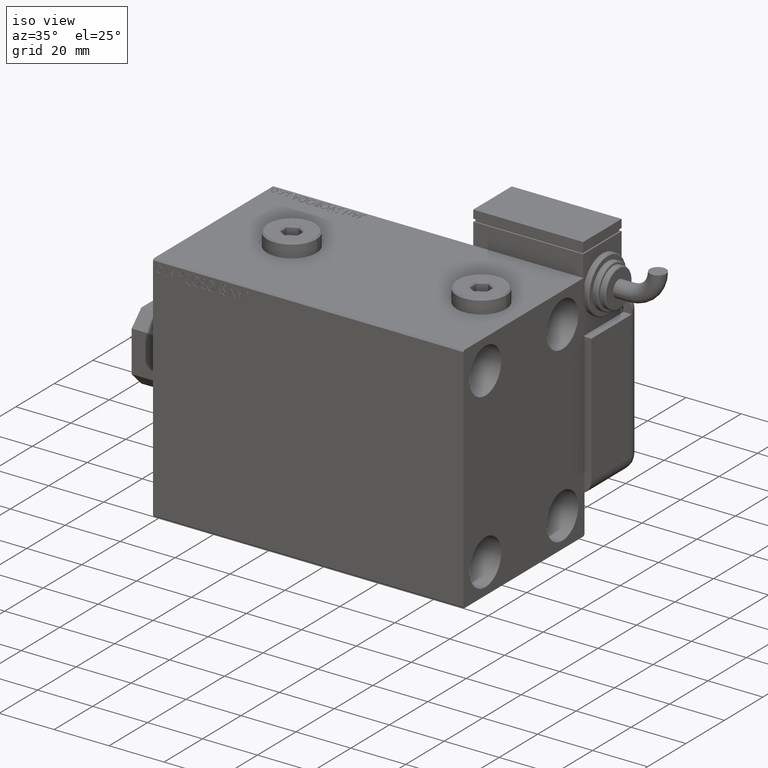
[diagram: clean part render]
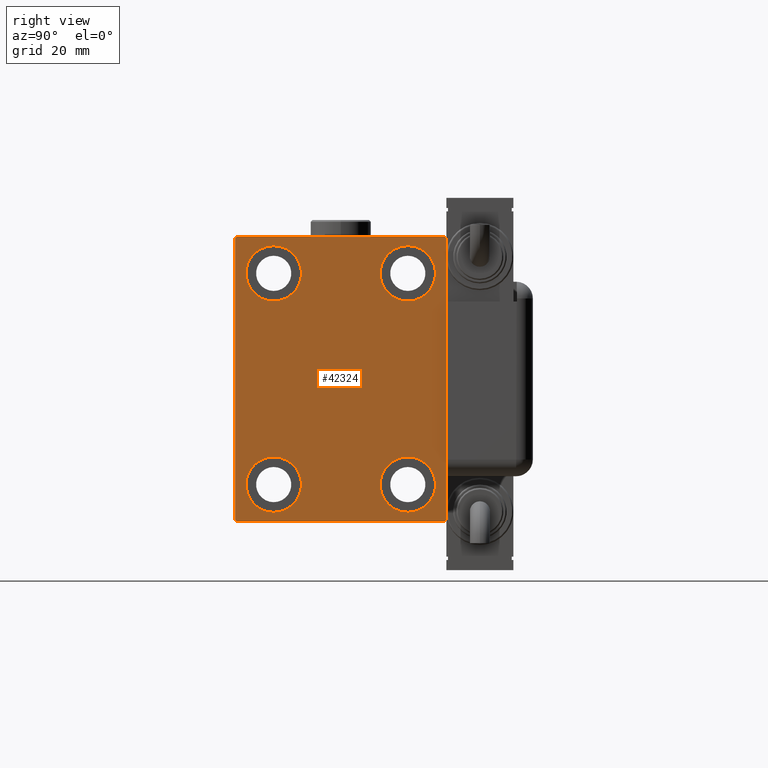
[diagram: tour spotlight — one face highlighted and labeled with its STEP entity id]
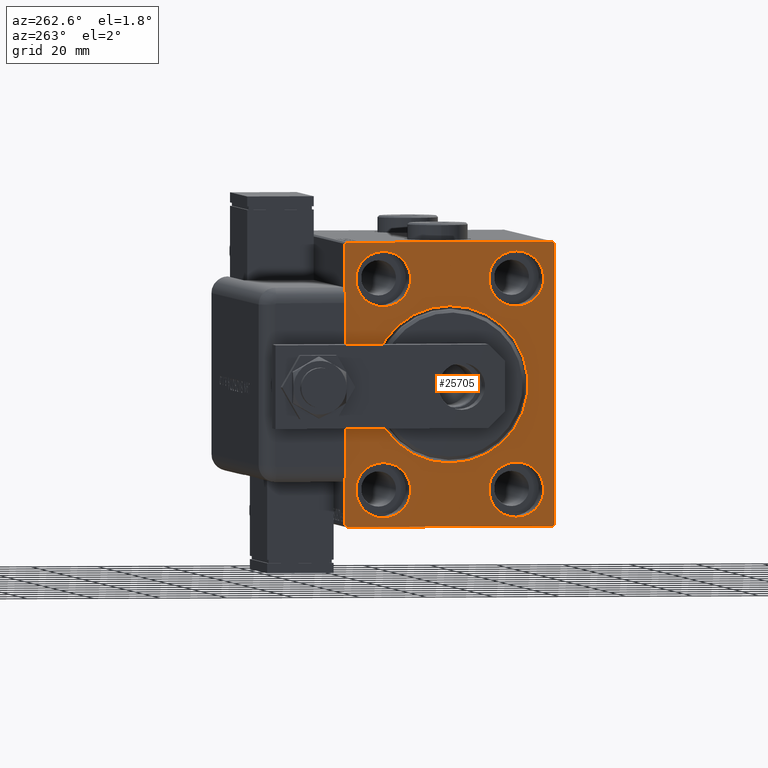
[diagram: tour spotlight — one face highlighted and labeled with its STEP entity id]
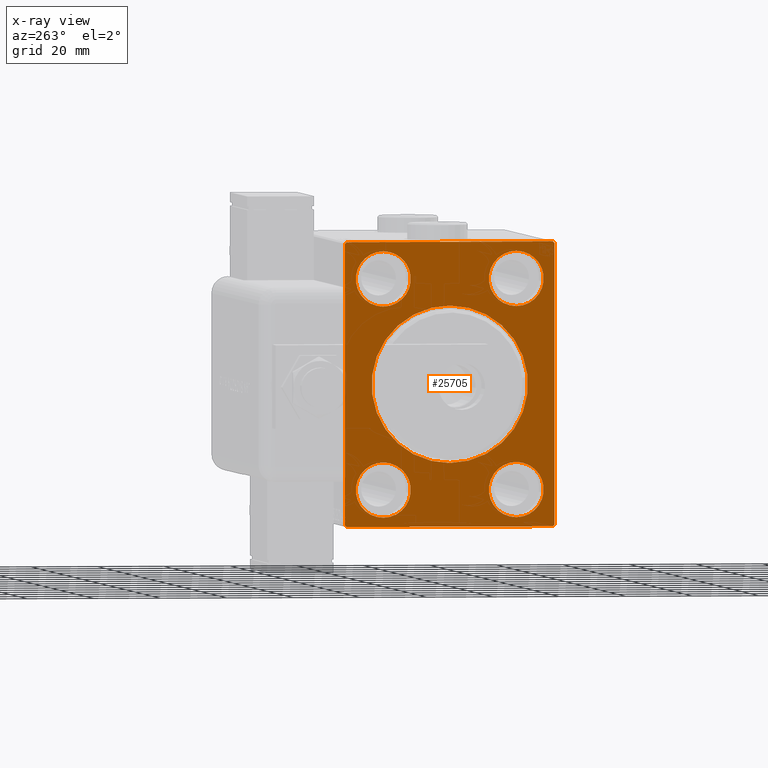
[diagram: x-ray of the same camera — body ghosted, this tour face saturated]
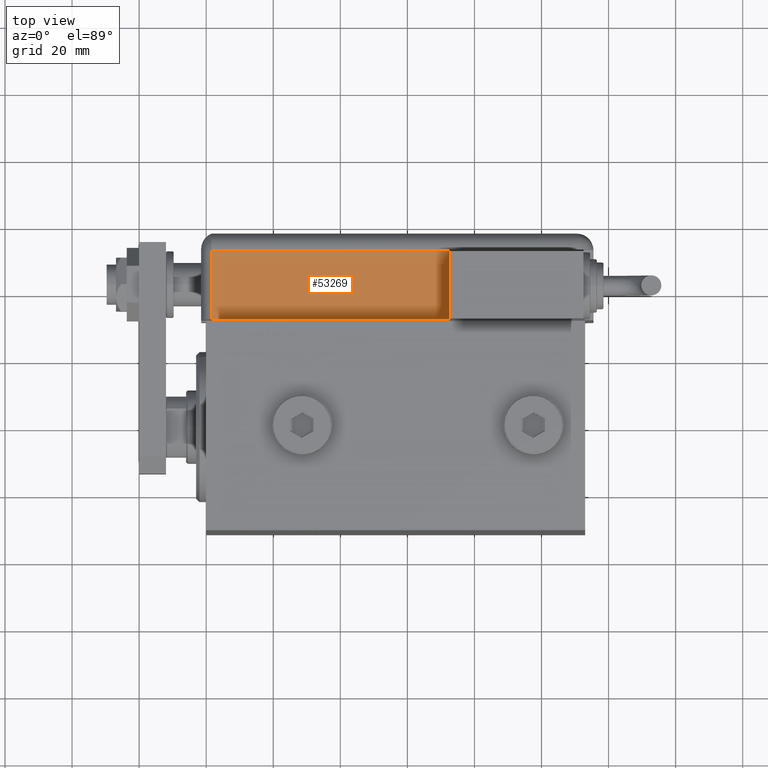
[diagram: tour spotlight — one face highlighted and labeled with its STEP entity id]
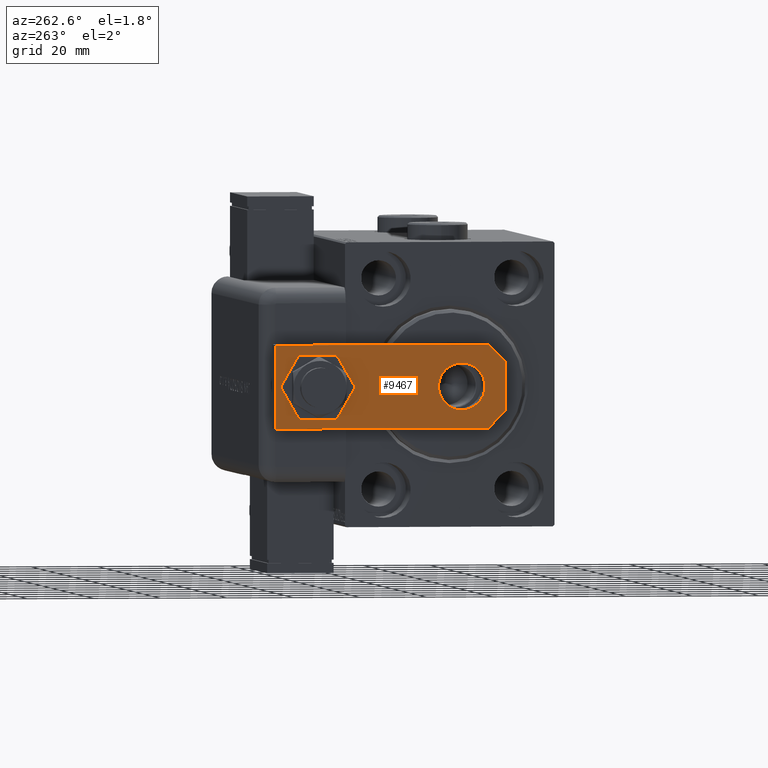
[diagram: tour spotlight — one face highlighted and labeled with its STEP entity id]
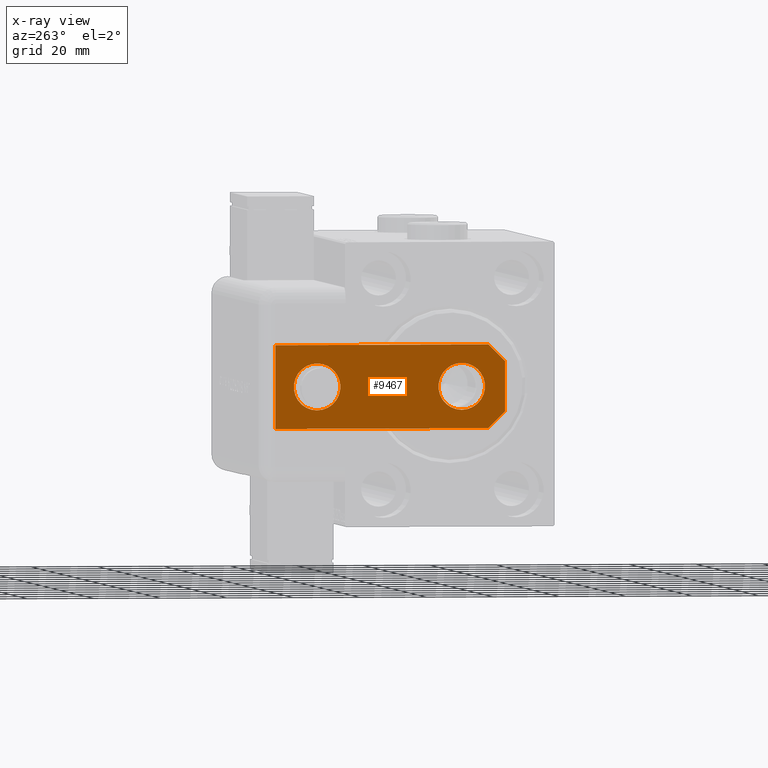
[diagram: x-ray of the same camera — body ghosted, this tour face saturated]
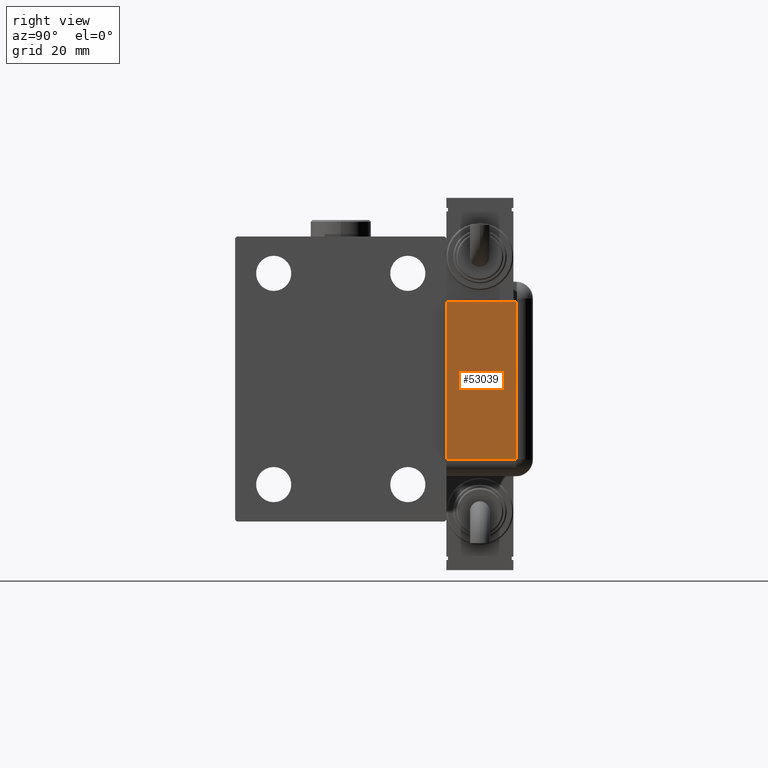
[diagram: tour spotlight — one face highlighted and labeled with its STEP entity id]
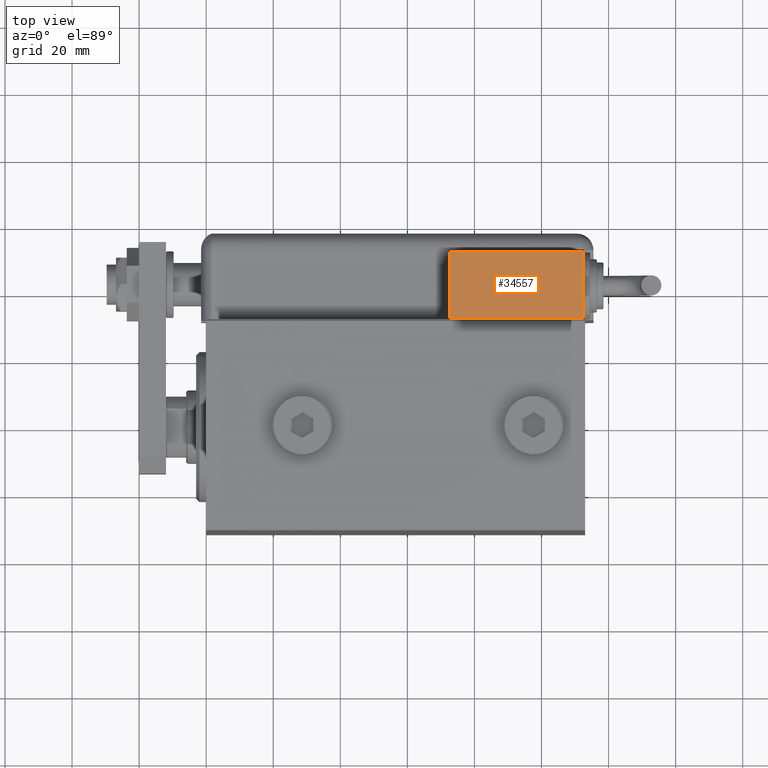
[diagram: tour spotlight — one face highlighted and labeled with its STEP entity id]
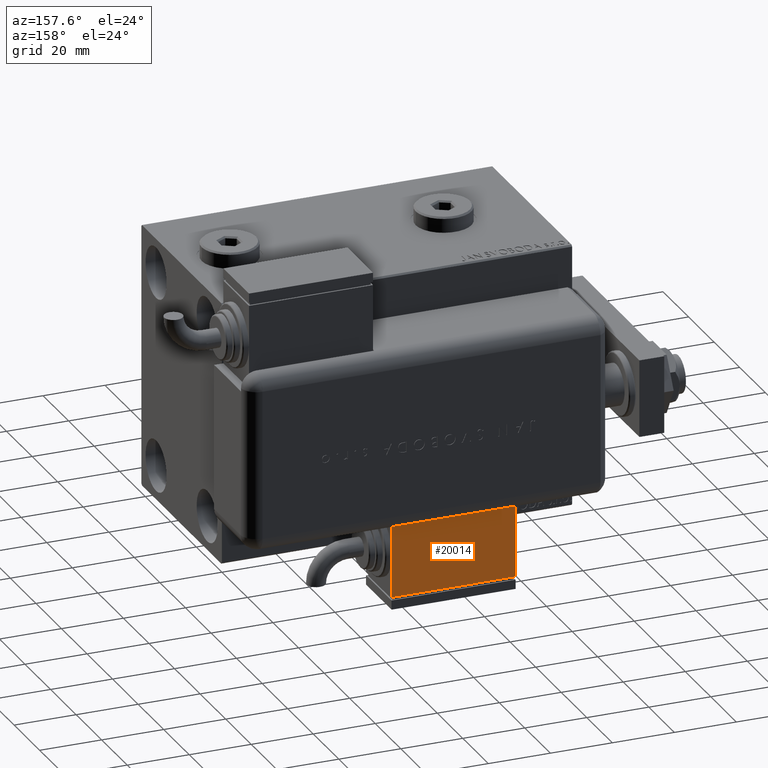
[diagram: tour spotlight — one face highlighted and labeled with its STEP entity id]
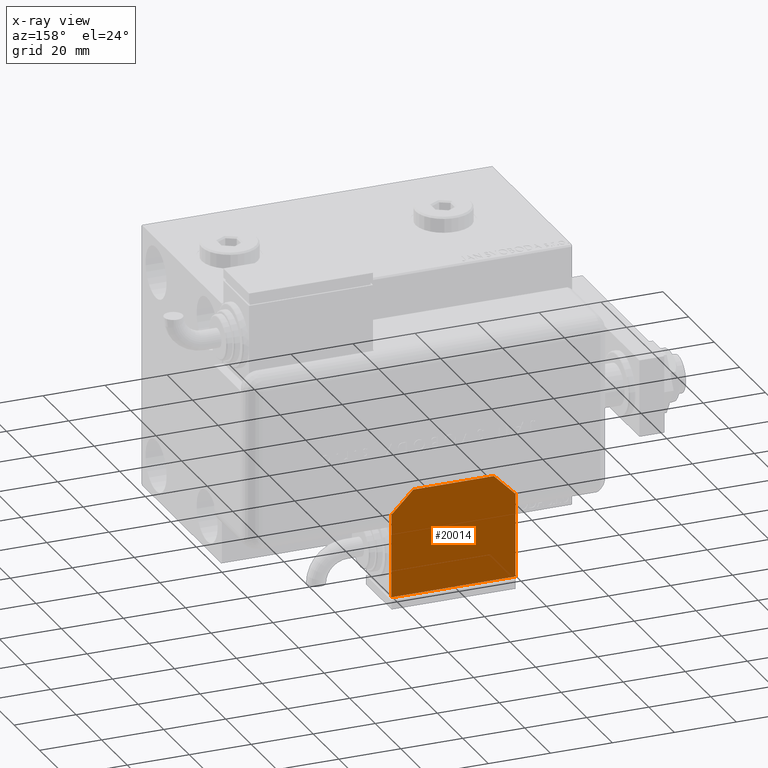
[diagram: x-ray of the same camera — body ghosted, this tour face saturated]
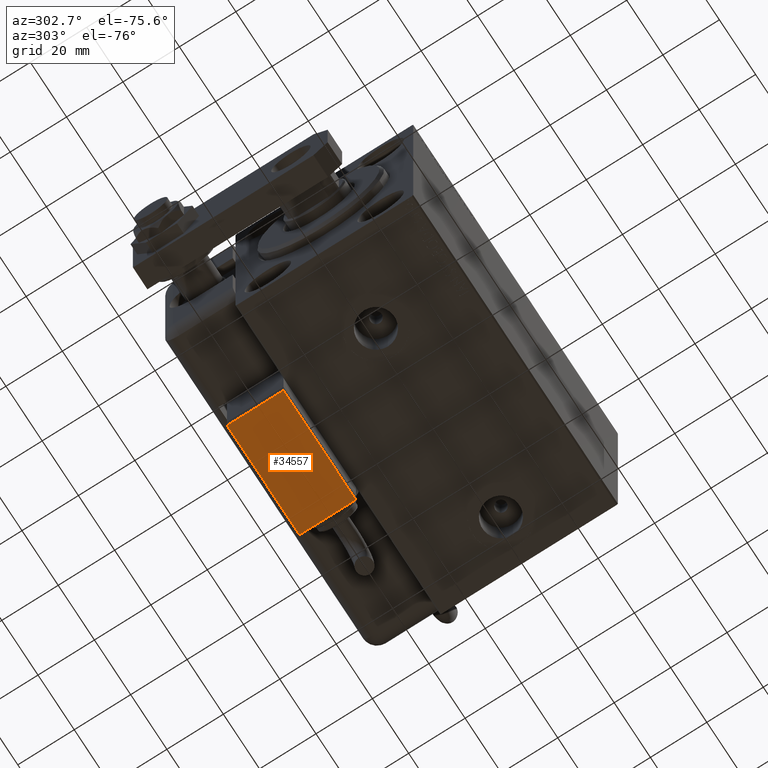
[diagram: tour spotlight — one face highlighted and labeled with its STEP entity id]
A machine part: a face-by-face anatomy tour. The part has 1300 B-rep faces; the first image is the clean iso view, then the 8 largest visible faces are spotlighted one at a time (largest first), each with its STEP entity span.

Face 1 — right view, entity #42324. In plain terms, the highlighted planar face has unit normal (1, 0, 0).
Definition (entity closure, byte-faithful):
#163 = VERTEX_POINT ( 'NONE', #48355 ) ;
#881 = FACE_BOUND ( 'NONE', #12547, .T. ) ;
#1147 = VECTOR ( 'NONE', #60481, 1000.000000000000114 ) ;
#1180 = CARTESIAN_POINT ( 'NONE',  ( 113.0000000000000000, 0.000000000000000000, 0.000000000000000000 ) ) ;
#1367 = CARTESIAN_POINT ( 'NONE',  ( 113.0000000000000000, -19.99999999999999645, 23.25000000000000355 ) ) ;
#1788 = CARTESIAN_POINT ( 'NONE',  ( 113.0000000000000000, -20.00000000000000355, -23.24999999999999289 ) ) ;
#1899 = EDGE_CURVE ( 'NONE', #26490, #8034, #24184, .T. ) ;
#3974 = AXIS2_PLACEMENT_3D ( 'NONE', #1180, #52376, #56994 ) ;
#4212 = EDGE_CURVE ( 'NONE', #163, #51815, #57241, .T. ) ;
#4309 = ORIENTED_EDGE ( 'NONE', *, *, #25605, .T. ) ;
#4444 = EDGE_CURVE ( 'NONE', #8034, #27098, #8486, .T. ) ;
#4465 = EDGE_CURVE ( 'NONE', #28912, #44376, #28076, .T. ) ;
#4735 = CARTESIAN_POINT ( 'NONE',  ( 113.0000000000000000, -19.99999999999999645, 31.50000000000000000 ) ) ;
#5036 = DIRECTION ( 'NONE',  ( -1.000000000000000000, -0.000000000000000000, -0.000000000000000000 ) ) ;
#5456 = VECTOR ( 'NONE', #24861, 1000.000000000000000 ) ;
#5556 = VERTEX_POINT ( 'NONE', #1367 ) ;
#6063 = CARTESIAN_POINT ( 'NONE',  ( 113.0000000000000000, 31.00000000000000000, -42.50000000000000711 ) ) ;
#6183 = CARTESIAN_POINT ( 'NONE',  ( 113.0000000000000000, -30.99999999999998579, 42.49999999999999289 ) ) ;
#6457 = VERTEX_POINT ( 'NONE', #40539 ) ;
#7351 = VECTOR ( 'NONE', #45401, 1000.000000000000114 ) ;
#7888 = EDGE_CURVE ( 'NONE', #6457, #14114, #49914, .T. ) ;
#8034 = VERTEX_POINT ( 'NONE', #44969 ) ;
#8486 = LINE ( 'NONE', #23286, #49782 ) ;
#10426 = FACE_BOUND ( 'NONE', #40494, .T. ) ;
#10445 = DIRECTION ( 'NONE',  ( -1.000000000000000000, -0.000000000000000000, -0.000000000000000000 ) ) ;
#11092 = DIRECTION ( 'NONE',  ( -0.000000000000000000, 0.7071067811865474617, 0.7071067811865474617 ) ) ;
#11503 = CARTESIAN_POINT ( 'NONE',  ( 113.0000000000000000, -31.50000000000000000, -41.99999999999999289 ) ) ;
#12048 = DIRECTION ( 'NONE',  ( 0.000000000000000000, 0.000000000000000000, 1.000000000000000000 ) ) ;
#12198 = CARTESIAN_POINT ( 'NONE',  ( 113.0000000000000000, 20.00000000000000355, 39.74999999999999289 ) ) ;
#12515 = DIRECTION ( 'NONE',  ( 0.000000000000000000, 0.000000000000000000, 1.000000000000000000 ) ) ;
#12547 = EDGE_LOOP ( 'NONE', ( #4309, #59628 ) ) ;
#12784 = CARTESIAN_POINT ( 'NONE',  ( 113.0000000000000000, 19.99999999999999645, -23.24999999999999289 ) ) ;
#12896 = AXIS2_PLACEMENT_3D ( 'NONE', #61019, #51465, #37563 ) ;
#14114 = VERTEX_POINT ( 'NONE', #12198 ) ;
#14863 = AXIS2_PLACEMENT_3D ( 'NONE', #45759, #5036, #42325 ) ;
#15052 = CARTESIAN_POINT ( 'NONE',  ( 113.0000000000000000, 19.99999999999999645, -31.49999999999999289 ) ) ;
#15914 = ORIENTED_EDGE ( 'NONE', *, *, #55507, .T. ) ;
#15921 = AXIS2_PLACEMENT_3D ( 'NONE', #34481, #10445, #25240 ) ;
#16809 = CIRCLE ( 'NONE', #12896, 8.250000000000000000 ) ;
#17635 = ORIENTED_EDGE ( 'NONE', *, *, #48485, .T. ) ;
#18044 = VECTOR ( 'NONE', #52513, 1000.000000000000000 ) ;
#18278 = ORIENTED_EDGE ( 'NONE', *, *, #36856, .T. ) ;
#18355 = ORIENTED_EDGE ( 'NONE', *, *, #42375, .T. ) ;
#18869 = AXIS2_PLACEMENT_3D ( 'NONE', #4735, #23252, #50706 ) ;
#19080 = FACE_OUTER_BOUND ( 'NONE', #49612, .T. ) ;
#19097 = VECTOR ( 'NONE', #44964, 1000.000000000000000 ) ;
#19386 = DIRECTION ( 'NONE',  ( 0.000000000000000000, 0.000000000000000000, 1.000000000000000000 ) ) ;
#21517 = EDGE_CURVE ( 'NONE', #49899, #50761, #53341, .T. ) ;
#21847 = CIRCLE ( 'NONE', #15921, 8.250000000000000000 ) ;
#22866 = CARTESIAN_POINT ( 'NONE',  ( 113.0000000000000000, -36.74999999999999289, -36.74999999999999289 ) ) ;
#23146 = DIRECTION ( 'NONE',  ( 0.000000000000000000, 0.000000000000000000, 1.000000000000000000 ) ) ;
#23252 = DIRECTION ( 'NONE',  ( -1.000000000000000000, -0.000000000000000000, -0.000000000000000000 ) ) ;
#23286 = CARTESIAN_POINT ( 'NONE',  ( 113.0000000000000000, -31.50000000000000000, 42.49999999999999289 ) ) ;
#24016 = FACE_BOUND ( 'NONE', #24598, .T. ) ;
#24184 = LINE ( 'NONE', #30932, #7351 ) ;
#24598 = EDGE_LOOP ( 'NONE', ( #48237, #58566 ) ) ;
#24861 = DIRECTION ( 'NONE',  ( -0.000000000000000000, -0.7071067811865573427, 0.7071067811865378028 ) ) ;
#25051 = CARTESIAN_POINT ( 'NONE',  ( 113.0000000000000000, 31.50000000000001421, -42.50000000000000711 ) ) ;
#25240 = DIRECTION ( 'NONE',  ( 0.000000000000000000, 0.000000000000000000, 1.000000000000000000 ) ) ;
#25242 = EDGE_CURVE ( 'NONE', #5556, #44458, #52296, .T. ) ;
#25605 = EDGE_CURVE ( 'NONE', #44376, #28912, #16809, .T. ) ;
#25636 = ORIENTED_EDGE ( 'NONE', *, *, #4444, .T. ) ;
#26490 = VERTEX_POINT ( 'NONE', #6183 ) ;
#27098 = VERTEX_POINT ( 'NONE', #11503 ) ;
#27739 = EDGE_CURVE ( 'NONE', #51893, #55994, #21847, .T. ) ;
#28076 = CIRCLE ( 'NONE', #35949, 8.250000000000000000 ) ;
#28691 = DIRECTION ( 'NONE',  ( 0.000000000000000000, -1.000000000000000000, -2.202823461557850341E-16 ) ) ;
#28912 = VERTEX_POINT ( 'NONE', #1788 ) ;
#29374 = LINE ( 'NONE', #25051, #18044 ) ;
#30932 = CARTESIAN_POINT ( 'NONE',  ( 113.0000000000000000, -36.74999999999998579, 36.74999999999998579 ) ) ;
#33547 = FACE_BOUND ( 'NONE', #44044, .T. ) ;
#33852 = PLANE ( 'NONE',  #3974 ) ;
#34403 = CARTESIAN_POINT ( 'NONE',  ( 113.0000000000000000, 36.74999999999955946, 36.75000000000057554 ) ) ;
#34481 = CARTESIAN_POINT ( 'NONE',  ( 113.0000000000000000, 19.99999999999999645, -31.49999999999999289 ) ) ;
#34760 = LINE ( 'NONE', #51831, #43685 ) ;
#35291 = EDGE_CURVE ( 'NONE', #50761, #163, #29374, .T. ) ;
#35405 = CARTESIAN_POINT ( 'NONE',  ( 113.0000000000000000, -31.50000000000000000, -42.50000000000000711 ) ) ;
#35949 = AXIS2_PLACEMENT_3D ( 'NONE', #37439, #40847, #12515 ) ;
#36856 = EDGE_CURVE ( 'NONE', #52132, #49899, #60379, .T. ) ;
#37439 = CARTESIAN_POINT ( 'NONE',  ( 113.0000000000000000, -20.00000000000000355, -31.49999999999999289 ) ) ;
#37563 = DIRECTION ( 'NONE',  ( 0.000000000000000000, 0.000000000000000000, 1.000000000000000000 ) ) ;
#38784 = DIRECTION ( 'NONE',  ( -1.000000000000000000, -0.000000000000000000, -0.000000000000000000 ) ) ;
#38926 = ORIENTED_EDGE ( 'NONE', *, *, #7888, .T. ) ;
#40494 = EDGE_LOOP ( 'NONE', ( #43355, #18355 ) ) ;
#40539 = CARTESIAN_POINT ( 'NONE',  ( 113.0000000000000000, 20.00000000000000355, 23.25000000000000355 ) ) ;
#40847 = DIRECTION ( 'NONE',  ( -1.000000000000000000, -0.000000000000000000, -0.000000000000000000 ) ) ;
#41733 = CARTESIAN_POINT ( 'NONE',  ( 113.0000000000000000, 30.99999999999995737, 42.50000000000000711 ) ) ;
#42064 = DIRECTION ( 'NONE',  ( 0.000000000000000000, 0.000000000000000000, -1.000000000000000000 ) ) ;
#42324 = ADVANCED_FACE ( 'NONE', ( #10426, #24016, #33547, #881, #19080 ), #33852, .T. ) ;
#42325 = DIRECTION ( 'NONE',  ( 0.000000000000000000, 0.000000000000000000, 1.000000000000000000 ) ) ;
#42375 = EDGE_CURVE ( 'NONE', #55994, #51893, #60097, .T. ) ;
#43192 = CARTESIAN_POINT ( 'NONE',  ( 113.0000000000000000, -20.00000000000000355, -39.74999999999999289 ) ) ;
#43355 = ORIENTED_EDGE ( 'NONE', *, *, #27739, .T. ) ;
#43685 = VECTOR ( 'NONE', #28691, 1000.000000000000000 ) ;
#43922 = ORIENTED_EDGE ( 'NONE', *, *, #21517, .T. ) ;
#43950 = AXIS2_PLACEMENT_3D ( 'NONE', #46264, #60761, #23146 ) ;
#44044 = EDGE_LOOP ( 'NONE', ( #38926, #17635 ) ) ;
#44376 = VERTEX_POINT ( 'NONE', #43192 ) ;
#44458 = VERTEX_POINT ( 'NONE', #58610 ) ;
#44525 = CIRCLE ( 'NONE', #46527, 8.249999999999992895 ) ;
#44681 = CARTESIAN_POINT ( 'NONE',  ( 113.0000000000000000, 36.75000000000000000, -36.75000000000000000 ) ) ;
#44964 = DIRECTION ( 'NONE',  ( 0.000000000000000000, 1.000000000000000000, 0.000000000000000000 ) ) ;
#44969 = CARTESIAN_POINT ( 'NONE',  ( 113.0000000000000000, -31.50000000000000000, 41.99999999999997868 ) ) ;
#45401 = DIRECTION ( 'NONE',  ( 0.000000000000000000, -0.7071067811865474617, -0.7071067811865474617 ) ) ;
#45456 = CIRCLE ( 'NONE', #18869, 8.249999999999992895 ) ;
#45759 = CARTESIAN_POINT ( 'NONE',  ( 113.0000000000000000, -19.99999999999999645, 31.50000000000000000 ) ) ;
#46030 = EDGE_CURVE ( 'NONE', #27098, #52132, #46289, .T. ) ;
#46264 = CARTESIAN_POINT ( 'NONE',  ( 113.0000000000000000, 20.00000000000000355, 31.50000000000000000 ) ) ;
#46289 = LINE ( 'NONE', #22866, #1147 ) ;
#46369 = CARTESIAN_POINT ( 'NONE',  ( 113.0000000000000000, 31.50000000000001421, -41.99999999999999289 ) ) ;
#46527 = AXIS2_PLACEMENT_3D ( 'NONE', #54296, #58613, #12048 ) ;
#47496 = ORIENTED_EDGE ( 'NONE', *, *, #4212, .T. ) ;
#48237 = ORIENTED_EDGE ( 'NONE', *, *, #25242, .T. ) ;
#48355 = CARTESIAN_POINT ( 'NONE',  ( 113.0000000000000000, 31.50000000000000000, 41.99999999999997868 ) ) ;
#48485 = EDGE_CURVE ( 'NONE', #14114, #6457, #44525, .T. ) ;
#49458 = ORIENTED_EDGE ( 'NONE', *, *, #1899, .T. ) ;
#49612 = EDGE_LOOP ( 'NONE', ( #15914, #49458, #25636, #57011, #18278, #43922, #58042, #47496 ) ) ;
#49782 = VECTOR ( 'NONE', #42064, 1000.000000000000000 ) ;
#49899 = VERTEX_POINT ( 'NONE', #6063 ) ;
#49914 = CIRCLE ( 'NONE', #43950, 8.249999999999992895 ) ;
#50235 = AXIS2_PLACEMENT_3D ( 'NONE', #15052, #38784, #19386 ) ;
#50640 = CARTESIAN_POINT ( 'NONE',  ( 113.0000000000000000, -30.99999999999998579, -42.50000000000000711 ) ) ;
#50706 = DIRECTION ( 'NONE',  ( 0.000000000000000000, 0.000000000000000000, 1.000000000000000000 ) ) ;
#50722 = EDGE_CURVE ( 'NONE', #44458, #5556, #45456, .T. ) ;
#50761 = VERTEX_POINT ( 'NONE', #46369 ) ;
#51465 = DIRECTION ( 'NONE',  ( -1.000000000000000000, -0.000000000000000000, -0.000000000000000000 ) ) ;
#51815 = VERTEX_POINT ( 'NONE', #41733 ) ;
#51831 = CARTESIAN_POINT ( 'NONE',  ( 113.0000000000000000, 31.50000000000000000, 42.50000000000000711 ) ) ;
#51893 = VERTEX_POINT ( 'NONE', #55648 ) ;
#52132 = VERTEX_POINT ( 'NONE', #50640 ) ;
#52296 = CIRCLE ( 'NONE', #14863, 8.249999999999992895 ) ;
#52376 = DIRECTION ( 'NONE',  ( 1.000000000000000000, 0.000000000000000000, 0.000000000000000000 ) ) ;
#52513 = DIRECTION ( 'NONE',  ( 0.000000000000000000, -1.632680918566406300E-16, 1.000000000000000000 ) ) ;
#53341 = LINE ( 'NONE', #44681, #60968 ) ;
#54296 = CARTESIAN_POINT ( 'NONE',  ( 113.0000000000000000, 20.00000000000000355, 31.50000000000000000 ) ) ;
#55507 = EDGE_CURVE ( 'NONE', #51815, #26490, #34760, .T. ) ;
#55648 = CARTESIAN_POINT ( 'NONE',  ( 113.0000000000000000, 19.99999999999999645, -39.74999999999999289 ) ) ;
#55994 = VERTEX_POINT ( 'NONE', #12784 ) ;
#56994 = DIRECTION ( 'NONE',  ( 0.000000000000000000, 0.000000000000000000, -1.000000000000000000 ) ) ;
#57011 = ORIENTED_EDGE ( 'NONE', *, *, #46030, .T. ) ;
#57241 = LINE ( 'NONE', #34403, #5456 ) ;
#58042 = ORIENTED_EDGE ( 'NONE', *, *, #35291, .T. ) ;
#58566 = ORIENTED_EDGE ( 'NONE', *, *, #50722, .T. ) ;
#58610 = CARTESIAN_POINT ( 'NONE',  ( 113.0000000000000000, -19.99999999999999645, 39.74999999999999289 ) ) ;
#58613 = DIRECTION ( 'NONE',  ( -1.000000000000000000, -0.000000000000000000, -0.000000000000000000 ) ) ;
#59628 = ORIENTED_EDGE ( 'NONE', *, *, #4465, .T. ) ;
#60097 = CIRCLE ( 'NONE', #50235, 8.250000000000000000 ) ;
#60379 = LINE ( 'NONE', #35405, #19097 ) ;
#60481 = DIRECTION ( 'NONE',  ( -0.000000000000000000, 0.7071067811865474617, -0.7071067811865474617 ) ) ;
#60761 = DIRECTION ( 'NONE',  ( -1.000000000000000000, -0.000000000000000000, -0.000000000000000000 ) ) ;
#60968 = VECTOR ( 'NONE', #11092, 1000.000000000000114 ) ;
#61019 = CARTESIAN_POINT ( 'NONE',  ( 113.0000000000000000, -20.00000000000000355, -31.49999999999999289 ) ) ;

Face 2 — auxiliary view, entity #25705. An x-ray twin of the same camera follows (body ghosted, this face saturated) — the face is partly hidden behind the body. In plain terms, the highlighted planar face has unit normal (1, 0, 0).
Definition (entity closure, byte-faithful):
#52 = ORIENTED_EDGE ( 'NONE', *, *, #32959, .F. ) ;
#510 = CARTESIAN_POINT ( 'NONE',  ( 0.000000000000000000, -30.99999999999998579, -42.50000000000000711 ) ) ;
#593 = VERTEX_POINT ( 'NONE', #510 ) ;
#1220 = VERTEX_POINT ( 'NONE', #16888 ) ;
#1227 = AXIS2_PLACEMENT_3D ( 'NONE', #35809, #49703, #45976 ) ;
#1296 = CARTESIAN_POINT ( 'NONE',  ( 0.000000000000000000, -19.99999999999999645, 23.25000000000000355 ) ) ;
#1665 = CARTESIAN_POINT ( 'NONE',  ( 0.000000000000000000, -30.99999999999998579, 42.49999999999999289 ) ) ;
#1781 = DIRECTION ( 'NONE',  ( 1.000000000000000000, 0.000000000000000000, 0.000000000000000000 ) ) ;
#1794 = ORIENTED_EDGE ( 'NONE', *, *, #60011, .F. ) ;
#2746 = AXIS2_PLACEMENT_3D ( 'NONE', #59309, #50361, #8116 ) ;
#2916 = DIRECTION ( 'NONE',  ( -0.000000000000000000, 0.7071067811865573427, -0.7071067811865378028 ) ) ;
#3011 = FACE_BOUND ( 'NONE', #42084, .T. ) ;
#3065 = ORIENTED_EDGE ( 'NONE', *, *, #39185, .T. ) ;
#3777 = LINE ( 'NONE', #54970, #11758 ) ;
#3907 = EDGE_LOOP ( 'NONE', ( #17322, #35334 ) ) ;
#4224 = FACE_BOUND ( 'NONE', #3907, .T. ) ;
#4845 = AXIS2_PLACEMENT_3D ( 'NONE', #56971, #11315, #39666 ) ;
#4976 = DIRECTION ( 'NONE',  ( -0.000000000000000000, 0.7071067811865474617, 0.7071067811865474617 ) ) ;
#5054 = DIRECTION ( 'NONE',  ( 0.000000000000000000, 0.000000000000000000, 1.000000000000000000 ) ) ;
#5130 = VERTEX_POINT ( 'NONE', #36614 ) ;
#5816 = CIRCLE ( 'NONE', #53092, 8.249999999999992895 ) ;
#6017 = CARTESIAN_POINT ( 'NONE',  ( 0.000000000000000000, 19.99999999999999645, -39.74999999999999289 ) ) ;
#6589 = CARTESIAN_POINT ( 'NONE',  ( 0.000000000000000000, -31.50000000000000000, 42.49999999999999289 ) ) ;
#6852 = VERTEX_POINT ( 'NONE', #51563 ) ;
#6951 = CIRCLE ( 'NONE', #30593, 8.250000000000000000 ) ;
#7124 = VECTOR ( 'NONE', #23260, 1000.000000000000000 ) ;
#7182 = CARTESIAN_POINT ( 'NONE',  ( 0.000000000000000000, 31.00000000000000000, -42.50000000000000711 ) ) ;
#7455 = VERTEX_POINT ( 'NONE', #1665 ) ;
#8116 = DIRECTION ( 'NONE',  ( 0.000000000000000000, 0.000000000000000000, 1.000000000000000000 ) ) ;
#8834 = FACE_BOUND ( 'NONE', #13019, .T. ) ;
#9655 = CARTESIAN_POINT ( 'NONE',  ( 0.000000000000000000, 31.50000000000001421, -41.99999999999999289 ) ) ;
#10551 = ORIENTED_EDGE ( 'NONE', *, *, #19643, .F. ) ;
#10579 = DIRECTION ( 'NONE',  ( -1.000000000000000000, 0.000000000000000000, 0.000000000000000000 ) ) ;
#11315 = DIRECTION ( 'NONE',  ( -1.000000000000000000, 0.000000000000000000, 0.000000000000000000 ) ) ;
#11693 = LINE ( 'NONE', #58870, #31396 ) ;
#11758 = VECTOR ( 'NONE', #59898, 1000.000000000000114 ) ;
#12468 = LINE ( 'NONE', #36189, #57213 ) ;
#13019 = EDGE_LOOP ( 'NONE', ( #29588, #55382 ) ) ;
#13479 = CARTESIAN_POINT ( 'NONE',  ( 0.000000000000000000, 0.000000000000000000, 0.000000000000000000 ) ) ;
#13576 = EDGE_CURVE ( 'NONE', #59311, #51770, #36227, .T. ) ;
#13830 = AXIS2_PLACEMENT_3D ( 'NONE', #48649, #1781, #39379 ) ;
#14076 = DIRECTION ( 'NONE',  ( 0.000000000000000000, 0.000000000000000000, 1.000000000000000000 ) ) ;
#14657 = EDGE_CURVE ( 'NONE', #42910, #58168, #52973, .T. ) ;
#14991 = CIRCLE ( 'NONE', #1227, 8.250000000000000000 ) ;
#15255 = VERTEX_POINT ( 'NONE', #20269 ) ;
#15467 = ORIENTED_EDGE ( 'NONE', *, *, #43385, .T. ) ;
#15548 = CARTESIAN_POINT ( 'NONE',  ( 0.000000000000000000, -19.99999999999999645, 31.50000000000000000 ) ) ;
#16368 = DIRECTION ( 'NONE',  ( 1.000000000000000000, 0.000000000000000000, 0.000000000000000000 ) ) ;
#16888 = CARTESIAN_POINT ( 'NONE',  ( 0.000000000000000000, 0.000000000000000000, 23.50000000000003197 ) ) ;
#17043 = DIRECTION ( 'NONE',  ( 0.000000000000000000, 0.000000000000000000, 1.000000000000000000 ) ) ;
#17322 = ORIENTED_EDGE ( 'NONE', *, *, #54206, .F. ) ;
#17385 = ORIENTED_EDGE ( 'NONE', *, *, #14657, .F. ) ;
#17747 = VECTOR ( 'NONE', #4976, 1000.000000000000114 ) ;
#18407 = CARTESIAN_POINT ( 'NONE',  ( 0.000000000000000000, -20.00000000000000355, -31.49999999999999289 ) ) ;
#19011 = AXIS2_PLACEMENT_3D ( 'NONE', #15548, #53785, #43905 ) ;
#19643 = EDGE_CURVE ( 'NONE', #6852, #45701, #35243, .T. ) ;
#19896 = VERTEX_POINT ( 'NONE', #46792 ) ;
#20247 = AXIS2_PLACEMENT_3D ( 'NONE', #18407, #36582, #14076 ) ;
#20269 = CARTESIAN_POINT ( 'NONE',  ( 0.000000000000000000, -20.00000000000000355, -39.74999999999999289 ) ) ;
#20558 = EDGE_CURVE ( 'NONE', #25324, #5130, #11693, .T. ) ;
#20773 = EDGE_CURVE ( 'NONE', #24511, #47271, #32397, .T. ) ;
#20998 = VERTEX_POINT ( 'NONE', #41477 ) ;
#21024 = ORIENTED_EDGE ( 'NONE', *, *, #40346, .T. ) ;
#21081 = DIRECTION ( 'NONE',  ( 0.000000000000000000, 0.000000000000000000, -1.000000000000000000 ) ) ;
#21260 = DIRECTION ( 'NONE',  ( 0.000000000000000000, -1.632680918566406300E-16, 1.000000000000000000 ) ) ;
#21524 = VERTEX_POINT ( 'NONE', #30213 ) ;
#22345 = CARTESIAN_POINT ( 'NONE',  ( 0.000000000000000000, 20.00000000000000355, 39.74999999999999289 ) ) ;
#22899 = CIRCLE ( 'NONE', #45508, 23.50000000000003197 ) ;
#23038 = PLANE ( 'NONE',  #43383 ) ;
#23260 = DIRECTION ( 'NONE',  ( 0.000000000000000000, 1.000000000000000000, 0.000000000000000000 ) ) ;
#23566 = CARTESIAN_POINT ( 'NONE',  ( 0.000000000000000000, 20.00000000000000355, 31.50000000000000000 ) ) ;
#23953 = CIRCLE ( 'NONE', #19011, 8.249999999999992895 ) ;
#24511 = VERTEX_POINT ( 'NONE', #1296 ) ;
#24557 = CARTESIAN_POINT ( 'NONE',  ( 0.000000000000000000, 31.50000000000000000, 42.50000000000000711 ) ) ;
#24932 = EDGE_CURVE ( 'NONE', #19896, #7455, #54363, .T. ) ;
#25012 = CARTESIAN_POINT ( 'NONE',  ( 0.000000000000000000, 0.000000000000000000, 0.000000000000000000 ) ) ;
#25324 = VERTEX_POINT ( 'NONE', #54267 ) ;
#25705 = ADVANCED_FACE ( 'NONE', ( #60346, #8834, #4224, #27054, #3011, #27654 ), #23038, .F. ) ;
#25802 = EDGE_LOOP ( 'NONE', ( #10551, #15467, #37005, #27533, #54946, #3065, #32101, #21024 ) ) ;
#26383 = AXIS2_PLACEMENT_3D ( 'NONE', #38632, #45320, #40684 ) ;
#27054 = FACE_BOUND ( 'NONE', #29208, .T. ) ;
#27266 = CARTESIAN_POINT ( 'NONE',  ( 0.000000000000000000, -31.50000000000000000, -41.99999999999999289 ) ) ;
#27281 = LINE ( 'NONE', #56239, #7124 ) ;
#27533 = ORIENTED_EDGE ( 'NONE', *, *, #45642, .T. ) ;
#27654 = FACE_OUTER_BOUND ( 'NONE', #25802, .T. ) ;
#28401 = CARTESIAN_POINT ( 'NONE',  ( 0.000000000000000000, -31.50000000000000000, 41.99999999999997868 ) ) ;
#29208 = EDGE_LOOP ( 'NONE', ( #57128, #17385 ) ) ;
#29412 = EDGE_CURVE ( 'NONE', #593, #30547, #27281, .T. ) ;
#29588 = ORIENTED_EDGE ( 'NONE', *, *, #44091, .F. ) ;
#30213 = CARTESIAN_POINT ( 'NONE',  ( 0.000000000000000000, -20.00000000000000355, -23.24999999999999289 ) ) ;
#30378 = CARTESIAN_POINT ( 'NONE',  ( 0.000000000000000000, 19.99999999999999645, -23.24999999999999289 ) ) ;
#30547 = VERTEX_POINT ( 'NONE', #7182 ) ;
#30593 = AXIS2_PLACEMENT_3D ( 'NONE', #60205, #46011, #17043 ) ;
#31396 = VECTOR ( 'NONE', #21260, 1000.000000000000000 ) ;
#32101 = ORIENTED_EDGE ( 'NONE', *, *, #29412, .F. ) ;
#32278 = DIRECTION ( 'NONE',  ( 0.000000000000000000, 0.000000000000000000, -1.000000000000000000 ) ) ;
#32397 = CIRCLE ( 'NONE', #4845, 8.249999999999992895 ) ;
#32959 = EDGE_CURVE ( 'NONE', #21524, #15255, #14991, .T. ) ;
#34119 = EDGE_LOOP ( 'NONE', ( #58962, #46717 ) ) ;
#35243 = LINE ( 'NONE', #6589, #45153 ) ;
#35334 = ORIENTED_EDGE ( 'NONE', *, *, #20773, .F. ) ;
#35809 = CARTESIAN_POINT ( 'NONE',  ( 0.000000000000000000, -20.00000000000000355, -31.49999999999999289 ) ) ;
#36189 = CARTESIAN_POINT ( 'NONE',  ( 0.000000000000000000, 30.99999999999995737, 42.50000000000000711 ) ) ;
#36227 = CIRCLE ( 'NONE', #26383, 8.250000000000000000 ) ;
#36582 = DIRECTION ( 'NONE',  ( -1.000000000000000000, 0.000000000000000000, 0.000000000000000000 ) ) ;
#36614 = CARTESIAN_POINT ( 'NONE',  ( 0.000000000000000000, 31.50000000000000000, 41.99999999999997868 ) ) ;
#37005 = ORIENTED_EDGE ( 'NONE', *, *, #24932, .F. ) ;
#38632 = CARTESIAN_POINT ( 'NONE',  ( 0.000000000000000000, 19.99999999999999645, -31.49999999999999289 ) ) ;
#39185 = EDGE_CURVE ( 'NONE', #25324, #30547, #52223, .T. ) ;
#39379 = DIRECTION ( 'NONE',  ( 0.000000000000000000, 0.000000000000000000, -1.000000000000000000 ) ) ;
#39666 = DIRECTION ( 'NONE',  ( 0.000000000000000000, 0.000000000000000000, 1.000000000000000000 ) ) ;
#40161 = EDGE_CURVE ( 'NONE', #58168, #42910, #5816, .T. ) ;
#40346 = EDGE_CURVE ( 'NONE', #593, #45701, #3777, .T. ) ;
#40684 = DIRECTION ( 'NONE',  ( 0.000000000000000000, 0.000000000000000000, 1.000000000000000000 ) ) ;
#41204 = DIRECTION ( 'NONE',  ( 1.000000000000000000, 0.000000000000000000, 0.000000000000000000 ) ) ;
#41477 = CARTESIAN_POINT ( 'NONE',  ( 0.000000000000000000, 2.877919977996283870E-15, -23.50000000000003197 ) ) ;
#42084 = EDGE_LOOP ( 'NONE', ( #52, #1794 ) ) ;
#42900 = VECTOR ( 'NONE', #51615, 1000.000000000000114 ) ;
#42910 = VERTEX_POINT ( 'NONE', #49804 ) ;
#43041 = DIRECTION ( 'NONE',  ( 0.000000000000000000, -1.000000000000000000, -2.202823461557850341E-16 ) ) ;
#43383 = AXIS2_PLACEMENT_3D ( 'NONE', #13479, #41204, #32278 ) ;
#43385 = EDGE_CURVE ( 'NONE', #6852, #7455, #51847, .T. ) ;
#43905 = DIRECTION ( 'NONE',  ( 0.000000000000000000, 0.000000000000000000, 1.000000000000000000 ) ) ;
#44091 = EDGE_CURVE ( 'NONE', #51770, #59311, #6951, .T. ) ;
#44616 = EDGE_CURVE ( 'NONE', #20998, #1220, #59160, .T. ) ;
#44723 = DIRECTION ( 'NONE',  ( 0.000000000000000000, 0.000000000000000000, -1.000000000000000000 ) ) ;
#45153 = VECTOR ( 'NONE', #21081, 1000.000000000000000 ) ;
#45320 = DIRECTION ( 'NONE',  ( -1.000000000000000000, 0.000000000000000000, 0.000000000000000000 ) ) ;
#45508 = AXIS2_PLACEMENT_3D ( 'NONE', #25012, #16368, #44723 ) ;
#45642 = EDGE_CURVE ( 'NONE', #19896, #5130, #12468, .T. ) ;
#45701 = VERTEX_POINT ( 'NONE', #27266 ) ;
#45976 = DIRECTION ( 'NONE',  ( 0.000000000000000000, 0.000000000000000000, 1.000000000000000000 ) ) ;
#46011 = DIRECTION ( 'NONE',  ( -1.000000000000000000, 0.000000000000000000, 0.000000000000000000 ) ) ;
#46717 = ORIENTED_EDGE ( 'NONE', *, *, #44616, .T. ) ;
#46792 = CARTESIAN_POINT ( 'NONE',  ( 0.000000000000000000, 30.99999999999995737, 42.50000000000000711 ) ) ;
#47271 = VERTEX_POINT ( 'NONE', #48242 ) ;
#48242 = CARTESIAN_POINT ( 'NONE',  ( 0.000000000000000000, -19.99999999999999645, 39.74999999999999289 ) ) ;
#48497 = EDGE_CURVE ( 'NONE', #1220, #20998, #22899, .T. ) ;
#48649 = CARTESIAN_POINT ( 'NONE',  ( 0.000000000000000000, 0.000000000000000000, 0.000000000000000000 ) ) ;
#49703 = DIRECTION ( 'NONE',  ( -1.000000000000000000, 0.000000000000000000, 0.000000000000000000 ) ) ;
#49804 = CARTESIAN_POINT ( 'NONE',  ( 0.000000000000000000, 20.00000000000000355, 23.25000000000000355 ) ) ;
#50361 = DIRECTION ( 'NONE',  ( -1.000000000000000000, 0.000000000000000000, 0.000000000000000000 ) ) ;
#51563 = CARTESIAN_POINT ( 'NONE',  ( 0.000000000000000000, -31.50000000000000000, 41.99999999999997868 ) ) ;
#51615 = DIRECTION ( 'NONE',  ( 0.000000000000000000, -0.7071067811865474617, -0.7071067811865474617 ) ) ;
#51770 = VERTEX_POINT ( 'NONE', #30378 ) ;
#51847 = LINE ( 'NONE', #28401, #17747 ) ;
#52223 = LINE ( 'NONE', #9655, #42900 ) ;
#52253 = VECTOR ( 'NONE', #43041, 1000.000000000000000 ) ;
#52973 = CIRCLE ( 'NONE', #2746, 8.249999999999992895 ) ;
#53092 = AXIS2_PLACEMENT_3D ( 'NONE', #23566, #10579, #5054 ) ;
#53785 = DIRECTION ( 'NONE',  ( -1.000000000000000000, 0.000000000000000000, 0.000000000000000000 ) ) ;
#54206 = EDGE_CURVE ( 'NONE', #47271, #24511, #23953, .T. ) ;
#54267 = CARTESIAN_POINT ( 'NONE',  ( 0.000000000000000000, 31.50000000000001421, -41.99999999999999289 ) ) ;
#54363 = LINE ( 'NONE', #24557, #52253 ) ;
#54946 = ORIENTED_EDGE ( 'NONE', *, *, #20558, .F. ) ;
#54970 = CARTESIAN_POINT ( 'NONE',  ( 0.000000000000000000, -30.99999999999998579, -42.50000000000000711 ) ) ;
#55382 = ORIENTED_EDGE ( 'NONE', *, *, #13576, .F. ) ;
#56239 = CARTESIAN_POINT ( 'NONE',  ( 0.000000000000000000, -31.50000000000000000, -42.50000000000000711 ) ) ;
#56971 = CARTESIAN_POINT ( 'NONE',  ( 0.000000000000000000, -19.99999999999999645, 31.50000000000000000 ) ) ;
#57128 = ORIENTED_EDGE ( 'NONE', *, *, #40161, .F. ) ;
#57213 = VECTOR ( 'NONE', #2916, 1000.000000000000000 ) ;
#57645 = CIRCLE ( 'NONE', #20247, 8.250000000000000000 ) ;
#58168 = VERTEX_POINT ( 'NONE', #22345 ) ;
#58870 = CARTESIAN_POINT ( 'NONE',  ( 0.000000000000000000, 31.50000000000001421, -42.50000000000000711 ) ) ;
#58962 = ORIENTED_EDGE ( 'NONE', *, *, #48497, .T. ) ;
#59160 = CIRCLE ( 'NONE', #13830, 23.50000000000003197 ) ;
#59309 = CARTESIAN_POINT ( 'NONE',  ( 0.000000000000000000, 20.00000000000000355, 31.50000000000000000 ) ) ;
#59311 = VERTEX_POINT ( 'NONE', #6017 ) ;
#59898 = DIRECTION ( 'NONE',  ( -0.000000000000000000, -0.7071067811865474617, 0.7071067811865474617 ) ) ;
#60011 = EDGE_CURVE ( 'NONE', #15255, #21524, #57645, .T. ) ;
#60205 = CARTESIAN_POINT ( 'NONE',  ( 0.000000000000000000, 19.99999999999999645, -31.49999999999999289 ) ) ;
#60346 = FACE_BOUND ( 'NONE', #34119, .T. ) ;

Face 3 — top view, entity #53269. In plain terms, the highlighted planar face has unit normal (-0, -0, -1).
Definition (entity closure, byte-faithful):
#3945 = LINE ( 'NONE', #16895, #56123 ) ;
#5548 = DIRECTION ( 'NONE',  ( -0.000000000000000000, -0.000000000000000000, -1.000000000000000000 ) ) ;
#10044 = DIRECTION ( 'NONE',  ( -0.000000000000000000, 1.000000000000000000, -0.000000000000000000 ) ) ;
#10554 = DIRECTION ( 'NONE',  ( -0.000000000000000000, -0.000000000000000000, 1.000000000000000000 ) ) ;
#13314 = EDGE_CURVE ( 'NONE', #29804, #58097, #51705, .T. ) ;
#15082 = VECTOR ( 'NONE', #5548, 1000.000000000000000 ) ;
#16895 = CARTESIAN_POINT ( 'NONE',  ( 28.99999999999999645, 0.000000000000000000, 43.00000000000000000 ) ) ;
#17272 = CARTESIAN_POINT ( 'NONE',  ( 28.99999999999999645, 25.79999999999998295, 114.0000000000000000 ) ) ;
#20471 = CARTESIAN_POINT ( 'NONE',  ( 28.99999999999999645, 0.000000000000000000, 43.00000000000000000 ) ) ;
#23048 = EDGE_CURVE ( 'NONE', #26428, #48133, #3945, .T. ) ;
#23904 = AXIS2_PLACEMENT_3D ( 'NONE', #17272, #54602, #26229 ) ;
#26229 = DIRECTION ( 'NONE',  ( 0.000000000000000000, 0.000000000000000000, 1.000000000000000000 ) ) ;
#26428 = VERTEX_POINT ( 'NONE', #32127 ) ;
#28702 = CARTESIAN_POINT ( 'NONE',  ( 28.99999999999999645, -9.421223957302265857E-15, 114.0000000000000000 ) ) ;
#29667 = CARTESIAN_POINT ( 'NONE',  ( 28.99999999999999645, 20.79999999999998650, 114.0000000000000000 ) ) ;
#29804 = VERTEX_POINT ( 'NONE', #28702 ) ;
#32127 = CARTESIAN_POINT ( 'NONE',  ( 28.99999999999999645, 20.79999999999998650, 43.00000000000000000 ) ) ;
#33384 = ORIENTED_EDGE ( 'NONE', *, *, #45858, .T. ) ;
#37998 = LINE ( 'NONE', #29667, #49394 ) ;
#39790 = PLANE ( 'NONE',  #23904 ) ;
#43523 = ORIENTED_EDGE ( 'NONE', *, *, #13314, .F. ) ;
#43755 = CARTESIAN_POINT ( 'NONE',  ( 28.99999999999999645, -9.421223957302265857E-15, 114.0000000000000000 ) ) ;
#45506 = EDGE_LOOP ( 'NONE', ( #49321, #60762, #33384, #43523 ) ) ;
#45858 = EDGE_CURVE ( 'NONE', #26428, #58097, #37998, .T. ) ;
#47786 = LINE ( 'NONE', #43755, #15082 ) ;
#47979 = CARTESIAN_POINT ( 'NONE',  ( 28.99999999999999645, 25.79999999999998295, 114.0000000000000000 ) ) ;
#48133 = VERTEX_POINT ( 'NONE', #20471 ) ;
#49321 = ORIENTED_EDGE ( 'NONE', *, *, #53485, .T. ) ;
#49394 = VECTOR ( 'NONE', #10554, 1000.000000000000000 ) ;
#51705 = LINE ( 'NONE', #47979, #60802 ) ;
#53269 = ADVANCED_FACE ( 'NONE', ( #58916 ), #39790, .F. ) ;
#53485 = EDGE_CURVE ( 'NONE', #29804, #48133, #47786, .T. ) ;
#53503 = CARTESIAN_POINT ( 'NONE',  ( 28.99999999999999645, 20.79999999999998650, 114.0000000000000000 ) ) ;
#54219 = DIRECTION ( 'NONE',  ( -0.000000000000000000, -1.000000000000000000, -0.000000000000000000 ) ) ;
#54602 = DIRECTION ( 'NONE',  ( -1.000000000000000000, 0.000000000000000000, 0.000000000000000000 ) ) ;
#56123 = VECTOR ( 'NONE', #54219, 1000.000000000000000 ) ;
#58097 = VERTEX_POINT ( 'NONE', #53503 ) ;
#58916 = FACE_OUTER_BOUND ( 'NONE', #45506, .T. ) ;
#60762 = ORIENTED_EDGE ( 'NONE', *, *, #23048, .F. ) ;
#60802 = VECTOR ( 'NONE', #10044, 1000.000000000000000 ) ;

Face 4 — auxiliary view, entity #9467. An x-ray twin of the same camera follows (body ghosted, this face saturated) — the face is partly hidden behind the body. In plain terms, the highlighted planar face has unit normal (1, 0, -0).
Definition (entity closure, byte-faithful):
#902 = CARTESIAN_POINT ( 'NONE',  ( -12.50000000000000888, 5.000000000000004441, 0.000000000000000000 ) ) ;
#1732 = CARTESIAN_POINT ( 'NONE',  ( 12.50000000000001066, 5.000000000000003553, 0.000000000000000000 ) ) ;
#1873 = FACE_BOUND ( 'NONE', #50618, .T. ) ;
#4189 = VECTOR ( 'NONE', #53692, 1000.000000000000000 ) ;
#5979 = VECTOR ( 'NONE', #6346, 1000.000000000000000 ) ;
#6171 = EDGE_LOOP ( 'NONE', ( #19963, #8694, #25413, #11708, #53937, #45484 ) ) ;
#6346 = DIRECTION ( 'NONE',  ( -1.759864395918499754E-16, -1.000000000000000000, 0.000000000000000000 ) ) ;
#8694 = ORIENTED_EDGE ( 'NONE', *, *, #49723, .T. ) ;
#9169 = CARTESIAN_POINT ( 'NONE',  ( -7.500000000000040856, 0.000000000000000000, 0.000000000000000000 ) ) ;
#9467 = ADVANCED_FACE ( 'NONE', ( #57374, #11423, #1873 ), #58288, .F. ) ;
#10796 = VERTEX_POINT ( 'NONE', #902 ) ;
#10803 = DIRECTION ( 'NONE',  ( -0.000000000000000000, 0.000000000000000000, 1.000000000000000000 ) ) ;
#10853 = CIRCLE ( 'NONE', #29572, 7.000000000000000000 ) ;
#11423 = FACE_BOUND ( 'NONE', #12464, .T. ) ;
#11708 = ORIENTED_EDGE ( 'NONE', *, *, #45536, .F. ) ;
#11709 = VERTEX_POINT ( 'NONE', #12736 ) ;
#12192 = CARTESIAN_POINT ( 'NONE',  ( -7.000000000000000000, 13.00000000000001066, 0.000000000000000000 ) ) ;
#12464 = EDGE_LOOP ( 'NONE', ( #32086, #40123 ) ) ;
#12736 = CARTESIAN_POINT ( 'NONE',  ( -7.500000000000040856, 0.000000000000000000, 0.000000000000000000 ) ) ;
#13098 = CARTESIAN_POINT ( 'NONE',  ( 0.000000000000000000, 56.50000000000000711, 0.000000000000000000 ) ) ;
#13810 = LINE ( 'NONE', #9169, #44578 ) ;
#14042 = VERTEX_POINT ( 'NONE', #1732 ) ;
#14625 = AXIS2_PLACEMENT_3D ( 'NONE', #29319, #10803, #48127 ) ;
#15009 = DIRECTION ( 'NONE',  ( -0.7071067811865450192, 0.7071067811865500152, -0.000000000000000000 ) ) ;
#15784 = DIRECTION ( 'NONE',  ( 1.000000000000000000, 0.000000000000000000, 0.000000000000000000 ) ) ;
#16994 = DIRECTION ( 'NONE',  ( 1.000000000000000000, 0.000000000000000000, 0.000000000000000000 ) ) ;
#17090 = DIRECTION ( 'NONE',  ( 1.000000000000000000, 0.000000000000000000, 0.000000000000000000 ) ) ;
#18194 = CARTESIAN_POINT ( 'NONE',  ( 6.999999999999998224, 56.50000000000000711, 0.000000000000000000 ) ) ;
#19963 = ORIENTED_EDGE ( 'NONE', *, *, #58151, .F. ) ;
#20205 = LINE ( 'NONE', #53498, #22766 ) ;
#21312 = LINE ( 'NONE', #53995, #4189 ) ;
#21332 = CARTESIAN_POINT ( 'NONE',  ( 3.851859888774471706E-31, 13.00000000000001066, 0.000000000000000000 ) ) ;
#21380 = CARTESIAN_POINT ( 'NONE',  ( 12.50000000000000178, 69.00000000000000000, 0.000000000000000000 ) ) ;
#22568 = CARTESIAN_POINT ( 'NONE',  ( -6.999999999999998224, 56.50000000000000711, 0.000000000000000000 ) ) ;
#22766 = VECTOR ( 'NONE', #57807, 1000.000000000000000 ) ;
#22776 = EDGE_CURVE ( 'NONE', #40793, #58482, #31515, .T. ) ;
#24585 = EDGE_CURVE ( 'NONE', #50675, #26798, #10853, .T. ) ;
#25413 = ORIENTED_EDGE ( 'NONE', *, *, #43652, .F. ) ;
#25681 = LINE ( 'NONE', #53751, #41610 ) ;
#26798 = VERTEX_POINT ( 'NONE', #12192 ) ;
#27033 = VERTEX_POINT ( 'NONE', #57458 ) ;
#27286 = DIRECTION ( 'NONE',  ( 1.000000000000000000, 0.000000000000000000, 0.000000000000000000 ) ) ;
#29319 = CARTESIAN_POINT ( 'NONE',  ( 0.000000000000000000, 0.000000000000000000, 0.000000000000000000 ) ) ;
#29534 = CIRCLE ( 'NONE', #36427, 6.999999999999998224 ) ;
#29572 = AXIS2_PLACEMENT_3D ( 'NONE', #21332, #59858, #16994 ) ;
#29769 = CARTESIAN_POINT ( 'NONE',  ( -12.49999999999999822, 69.00000000000000000, 0.000000000000000000 ) ) ;
#30005 = VECTOR ( 'NONE', #17090, 1000.000000000000000 ) ;
#30516 = EDGE_CURVE ( 'NONE', #14042, #27033, #25681, .T. ) ;
#31004 = LINE ( 'NONE', #57839, #5979 ) ;
#31515 = CIRCLE ( 'NONE', #51202, 6.999999999999998224 ) ;
#32076 = CARTESIAN_POINT ( 'NONE',  ( 0.000000000000000000, 56.50000000000000711, 0.000000000000000000 ) ) ;
#32086 = ORIENTED_EDGE ( 'NONE', *, *, #42969, .T. ) ;
#35592 = CARTESIAN_POINT ( 'NONE',  ( 7.000000000000000000, 13.00000000000001066, 0.000000000000000000 ) ) ;
#36427 = AXIS2_PLACEMENT_3D ( 'NONE', #13098, #50720, #27286 ) ;
#39826 = ORIENTED_EDGE ( 'NONE', *, *, #24585, .T. ) ;
#39833 = VERTEX_POINT ( 'NONE', #29769 ) ;
#40123 = ORIENTED_EDGE ( 'NONE', *, *, #22776, .T. ) ;
#40472 = CIRCLE ( 'NONE', #60178, 7.000000000000000000 ) ;
#40793 = VERTEX_POINT ( 'NONE', #18194 ) ;
#40812 = LINE ( 'NONE', #55928, #30005 ) ;
#41610 = VECTOR ( 'NONE', #45393, 1000.000000000000000 ) ;
#42969 = EDGE_CURVE ( 'NONE', #58482, #40793, #29534, .T. ) ;
#43652 = EDGE_CURVE ( 'NONE', #39833, #10796, #31004, .T. ) ;
#44064 = VERTEX_POINT ( 'NONE', #21380 ) ;
#44578 = VECTOR ( 'NONE', #15009, 1000.000000000000000 ) ;
#44963 = EDGE_CURVE ( 'NONE', #26798, #50675, #40472, .T. ) ;
#45393 = DIRECTION ( 'NONE',  ( -0.7071067811865485719, -0.7071067811865465735, -0.000000000000000000 ) ) ;
#45484 = ORIENTED_EDGE ( 'NONE', *, *, #30516, .T. ) ;
#45536 = EDGE_CURVE ( 'NONE', #44064, #39833, #20205, .T. ) ;
#48127 = DIRECTION ( 'NONE',  ( 1.000000000000000000, 0.000000000000000000, 0.000000000000000000 ) ) ;
#48392 = EDGE_CURVE ( 'NONE', #14042, #44064, #21312, .T. ) ;
#48763 = ORIENTED_EDGE ( 'NONE', *, *, #44963, .T. ) ;
#49723 = EDGE_CURVE ( 'NONE', #11709, #10796, #13810, .T. ) ;
#50618 = EDGE_LOOP ( 'NONE', ( #48763, #39826 ) ) ;
#50675 = VERTEX_POINT ( 'NONE', #35592 ) ;
#50720 = DIRECTION ( 'NONE',  ( 0.000000000000000000, 0.000000000000000000, 1.000000000000000000 ) ) ;
#51202 = AXIS2_PLACEMENT_3D ( 'NONE', #32076, #55819, #55518 ) ;
#53498 = CARTESIAN_POINT ( 'NONE',  ( 12.50000000000000178, 69.00000000000000000, 0.000000000000000000 ) ) ;
#53692 = DIRECTION ( 'NONE',  ( -1.257045997084642611E-16, 1.000000000000000000, 0.000000000000000000 ) ) ;
#53751 = CARTESIAN_POINT ( 'NONE',  ( 12.50000000000001066, 5.000000000000004441, 0.000000000000000000 ) ) ;
#53937 = ORIENTED_EDGE ( 'NONE', *, *, #48392, .F. ) ;
#53995 = CARTESIAN_POINT ( 'NONE',  ( 12.50000000000001066, 0.000000000000000000, 0.000000000000000000 ) ) ;
#55518 = DIRECTION ( 'NONE',  ( 1.000000000000000000, 0.000000000000000000, 0.000000000000000000 ) ) ;
#55819 = DIRECTION ( 'NONE',  ( 0.000000000000000000, 0.000000000000000000, 1.000000000000000000 ) ) ;
#55928 = CARTESIAN_POINT ( 'NONE',  ( -12.50000000000001066, 0.000000000000000000, 0.000000000000000000 ) ) ;
#57374 = FACE_OUTER_BOUND ( 'NONE', #6171, .T. ) ;
#57458 = CARTESIAN_POINT ( 'NONE',  ( 7.499999999999992895, 0.000000000000000000, 0.000000000000000000 ) ) ;
#57807 = DIRECTION ( 'NONE',  ( -1.000000000000000000, 0.000000000000000000, 0.000000000000000000 ) ) ;
#57839 = CARTESIAN_POINT ( 'NONE',  ( -12.49999999999999822, 69.00000000000000000, 0.000000000000000000 ) ) ;
#58151 = EDGE_CURVE ( 'NONE', #11709, #27033, #40812, .T. ) ;
#58288 = PLANE ( 'NONE',  #14625 ) ;
#58335 = CARTESIAN_POINT ( 'NONE',  ( 3.851859888774471706E-31, 13.00000000000001066, 0.000000000000000000 ) ) ;
#58482 = VERTEX_POINT ( 'NONE', #22568 ) ;
#58642 = DIRECTION ( 'NONE',  ( 0.000000000000000000, 0.000000000000000000, 1.000000000000000000 ) ) ;
#59858 = DIRECTION ( 'NONE',  ( 0.000000000000000000, 0.000000000000000000, 1.000000000000000000 ) ) ;
#60178 = AXIS2_PLACEMENT_3D ( 'NONE', #58335, #58642, #15784 ) ;

Face 5 — right view, entity #53039. In plain terms, the highlighted planar face has unit normal (1, -0, -0).
Definition (entity closure, byte-faithful):
#1508 = CARTESIAN_POINT ( 'NONE',  ( 23.00000000000000000, 0.000000000000000000, 0.000000000000000000 ) ) ;
#1811 = LINE ( 'NONE', #1508, #21327 ) ;
#2183 = CARTESIAN_POINT ( 'NONE',  ( -24.00000000000000000, 1.007682896475360147E-13, 0.000000000000000000 ) ) ;
#2558 = FACE_OUTER_BOUND ( 'NONE', #13132, .T. ) ;
#5428 = CARTESIAN_POINT ( 'NONE',  ( 28.99999999999999645, -9.421223957302265857E-15, 0.000000000000000000 ) ) ;
#8854 = VERTEX_POINT ( 'NONE', #25226 ) ;
#9137 = LINE ( 'NONE', #5428, #48331 ) ;
#9186 = ORIENTED_EDGE ( 'NONE', *, *, #10822, .F. ) ;
#10822 = EDGE_CURVE ( 'NONE', #16771, #8854, #1811, .T. ) ;
#11205 = DIRECTION ( 'NONE',  ( 1.000000000000000000, -0.000000000000000000, -0.000000000000000000 ) ) ;
#11633 = CARTESIAN_POINT ( 'NONE',  ( 23.00000000000000000, 0.000000000000000000, 0.000000000000000000 ) ) ;
#11809 = DIRECTION ( 'NONE',  ( 0.000000000000000000, 0.000000000000000000, -1.000000000000000000 ) ) ;
#12723 = PLANE ( 'NONE',  #46561 ) ;
#13117 = VECTOR ( 'NONE', #29146, 1000.000000000000000 ) ;
#13132 = EDGE_LOOP ( 'NONE', ( #38258, #9186, #20277, #56217 ) ) ;
#15258 = CARTESIAN_POINT ( 'NONE',  ( -24.00000000000000000, 20.79999999999998650, 0.000000000000000000 ) ) ;
#16172 = LINE ( 'NONE', #15258, #13117 ) ;
#16771 = VERTEX_POINT ( 'NONE', #11633 ) ;
#19612 = DIRECTION ( 'NONE',  ( 1.000000000000000000, -2.079047426506382950E-15, -0.000000000000000000 ) ) ;
#20277 = ORIENTED_EDGE ( 'NONE', *, *, #25783, .F. ) ;
#21327 = VECTOR ( 'NONE', #34180, 1000.000000000000000 ) ;
#21684 = DIRECTION ( 'NONE',  ( -1.000000000000000000, 0.000000000000000000, -0.000000000000000000 ) ) ;
#21689 = LINE ( 'NONE', #29703, #38621 ) ;
#25226 = CARTESIAN_POINT ( 'NONE',  ( 23.00000000000000000, 20.79999999999998650, 1.734723475976807094E-15 ) ) ;
#25783 = EDGE_CURVE ( 'NONE', #27448, #16771, #9137, .T. ) ;
#27448 = VERTEX_POINT ( 'NONE', #2183 ) ;
#29146 = DIRECTION ( 'NONE',  ( -0.000000000000000000, 1.000000000000000000, -0.000000000000000000 ) ) ;
#29703 = CARTESIAN_POINT ( 'NONE',  ( 24.00000000000000000, 20.79999999999998650, 0.000000000000000000 ) ) ;
#31531 = CARTESIAN_POINT ( 'NONE',  ( 0.000000000000000000, 0.000000000000000000, 0.000000000000000000 ) ) ;
#34180 = DIRECTION ( 'NONE',  ( 0.000000000000000000, 1.000000000000000000, 0.000000000000000000 ) ) ;
#34969 = EDGE_CURVE ( 'NONE', #27448, #45346, #16172, .T. ) ;
#36643 = CARTESIAN_POINT ( 'NONE',  ( -24.00000000000000000, 20.79999999999998650, 0.000000000000000000 ) ) ;
#38258 = ORIENTED_EDGE ( 'NONE', *, *, #48040, .T. ) ;
#38621 = VECTOR ( 'NONE', #11205, 1000.000000000000000 ) ;
#45346 = VERTEX_POINT ( 'NONE', #36643 ) ;
#46561 = AXIS2_PLACEMENT_3D ( 'NONE', #31531, #11809, #21684 ) ;
#48040 = EDGE_CURVE ( 'NONE', #45346, #8854, #21689, .T. ) ;
#48331 = VECTOR ( 'NONE', #19612, 1000.000000000000000 ) ;
#53039 = ADVANCED_FACE ( 'NONE', ( #2558 ), #12723, .T. ) ;
#56217 = ORIENTED_EDGE ( 'NONE', *, *, #34969, .T. ) ;

Face 6 — top view, entity #34557. In plain terms, the highlighted planar face has unit normal (-0, -0, -1).
Definition (entity closure, byte-faithful):
#1322 = DIRECTION ( 'NONE',  ( -0.000000000000000000, -0.000000000000000000, -1.000000000000000000 ) ) ;
#4069 = DIRECTION ( 'NONE',  ( 1.000000000000000000, 0.000000000000000000, 0.000000000000000000 ) ) ;
#4306 = CARTESIAN_POINT ( 'NONE',  ( 20.00000000000005329, -17.49999999999996092, -9.999999999999998224 ) ) ;
#6700 = VECTOR ( 'NONE', #36000, 1000.000000000000000 ) ;
#10987 = VECTOR ( 'NONE', #1322, 1000.000000000000000 ) ;
#13566 = CARTESIAN_POINT ( 'NONE',  ( -19.99999999999994316, -17.49999999999996092, -9.999999999999998224 ) ) ;
#13657 = VERTEX_POINT ( 'NONE', #13566 ) ;
#13925 = EDGE_CURVE ( 'NONE', #60404, #32506, #37208, .T. ) ;
#14533 = LINE ( 'NONE', #46308, #43339 ) ;
#15645 = ORIENTED_EDGE ( 'NONE', *, *, #32714, .T. ) ;
#16930 = FACE_OUTER_BOUND ( 'NONE', #51496, .T. ) ;
#17235 = PLANE ( 'NONE',  #21969 ) ;
#17917 = VERTEX_POINT ( 'NONE', #4306 ) ;
#21623 = ORIENTED_EDGE ( 'NONE', *, *, #43356, .T. ) ;
#21969 = AXIS2_PLACEMENT_3D ( 'NONE', #31428, #55171, #36044 ) ;
#23853 = VECTOR ( 'NONE', #35041, 1000.000000000000000 ) ;
#31428 = CARTESIAN_POINT ( 'NONE',  ( 0.000000000000000000, -17.49999999999996092, 0.000000000000000000 ) ) ;
#32506 = VERTEX_POINT ( 'NONE', #54550 ) ;
#32714 = EDGE_CURVE ( 'NONE', #17917, #60404, #55307, .T. ) ;
#34557 = ADVANCED_FACE ( 'NONE', ( #16930 ), #17235, .F. ) ;
#35041 = DIRECTION ( 'NONE',  ( 0.000000000000000000, 0.000000000000000000, 1.000000000000000000 ) ) ;
#36000 = DIRECTION ( 'NONE',  ( -1.000000000000000000, -0.000000000000000000, -0.000000000000000000 ) ) ;
#36044 = DIRECTION ( 'NONE',  ( 0.000000000000000000, -0.000000000000000000, 1.000000000000000000 ) ) ;
#37208 = LINE ( 'NONE', #55129, #6700 ) ;
#38123 = ORIENTED_EDGE ( 'NONE', *, *, #50925, .T. ) ;
#43339 = VECTOR ( 'NONE', #4069, 1000.000000000000000 ) ;
#43356 = EDGE_CURVE ( 'NONE', #13657, #17917, #14533, .T. ) ;
#46046 = CARTESIAN_POINT ( 'NONE',  ( 20.00000000000005329, -17.49999999999996092, -9.999999999999998224 ) ) ;
#46308 = CARTESIAN_POINT ( 'NONE',  ( -19.99999999999994316, -17.49999999999996092, -9.999999999999998224 ) ) ;
#47576 = LINE ( 'NONE', #52519, #10987 ) ;
#50925 = EDGE_CURVE ( 'NONE', #32506, #13657, #47576, .T. ) ;
#51022 = CARTESIAN_POINT ( 'NONE',  ( 20.00000000000005329, -17.49999999999996092, 10.00000000000000000 ) ) ;
#51496 = EDGE_LOOP ( 'NONE', ( #15645, #55534, #38123, #21623 ) ) ;
#52519 = CARTESIAN_POINT ( 'NONE',  ( -19.99999999999994316, -17.49999999999996092, -9.999999999999998224 ) ) ;
#54550 = CARTESIAN_POINT ( 'NONE',  ( -19.99999999999994316, -17.49999999999996092, 10.00000000000000000 ) ) ;
#55129 = CARTESIAN_POINT ( 'NONE',  ( -19.99999999999994316, -17.49999999999996092, 10.00000000000000000 ) ) ;
#55171 = DIRECTION ( 'NONE',  ( 0.000000000000000000, 1.000000000000000000, 0.000000000000000000 ) ) ;
#55307 = LINE ( 'NONE', #46046, #23853 ) ;
#55534 = ORIENTED_EDGE ( 'NONE', *, *, #13925, .T. ) ;
#60404 = VERTEX_POINT ( 'NONE', #51022 ) ;

Face 7 — auxiliary view, entity #20014. An x-ray twin of the same camera follows (body ghosted, this face saturated) — the face is partly hidden behind the body. In plain terms, the highlighted planar face has unit normal (-0, 1, -0).
Definition (entity closure, byte-faithful):
#2128 = VERTEX_POINT ( 'NONE', #19483 ) ;
#2660 = EDGE_CURVE ( 'NONE', #59095, #11527, #14179, .T. ) ;
#8225 = CARTESIAN_POINT ( 'NONE',  ( -12.99999999999994138, 20.50000000000009592, 10.00000000000000000 ) ) ;
#8684 = EDGE_CURVE ( 'NONE', #56279, #26859, #60119, .T. ) ;
#8745 = DIRECTION ( 'NONE',  ( 1.000000000000000000, 0.000000000000000000, 0.000000000000000000 ) ) ;
#11527 = VERTEX_POINT ( 'NONE', #26613 ) ;
#12774 = LINE ( 'NONE', #30974, #50191 ) ;
#13259 = VECTOR ( 'NONE', #42514, 1000.000000000000000 ) ;
#13745 = VERTEX_POINT ( 'NONE', #24629 ) ;
#14179 = LINE ( 'NONE', #38504, #13259 ) ;
#15616 = AXIS2_PLACEMENT_3D ( 'NONE', #55298, #27837, #36777 ) ;
#17540 = VERTEX_POINT ( 'NONE', #19538 ) ;
#17883 = LINE ( 'NONE', #58915, #37574 ) ;
#17981 = FACE_OUTER_BOUND ( 'NONE', #24293, .T. ) ;
#18309 = LINE ( 'NONE', #37098, #33612 ) ;
#18483 = DIRECTION ( 'NONE',  ( -1.284980352575421081E-16, -1.000000000000000000, -0.000000000000000000 ) ) ;
#19377 = ORIENTED_EDGE ( 'NONE', *, *, #22098, .T. ) ;
#19483 = CARTESIAN_POINT ( 'NONE',  ( 20.00000000000005684, 13.50000000000003730, 10.00000000000000000 ) ) ;
#19538 = CARTESIAN_POINT ( 'NONE',  ( 12.99999999999999112, 20.50000000000009592, 10.00000000000000000 ) ) ;
#20014 = ADVANCED_FACE ( 'NONE', ( #17981 ), #50678, .T. ) ;
#20447 = LINE ( 'NONE', #39228, #35424 ) ;
#21099 = ORIENTED_EDGE ( 'NONE', *, *, #42151, .T. ) ;
#22098 = EDGE_CURVE ( 'NONE', #26859, #13745, #12774, .T. ) ;
#24293 = EDGE_LOOP ( 'NONE', ( #21099, #32341, #44354, #25345, #58403, #19377, #53601 ) ) ;
#24629 = CARTESIAN_POINT ( 'NONE',  ( 20.00000000000005329, -13.49999999999996092, 10.00000000000000000 ) ) ;
#25345 = ORIENTED_EDGE ( 'NONE', *, *, #27519, .T. ) ;
#26374 = CARTESIAN_POINT ( 'NONE',  ( -19.99999999999994316, -13.49999999999996092, 10.00000000000000000 ) ) ;
#26613 = CARTESIAN_POINT ( 'NONE',  ( -19.99999999999993960, 13.49999999999986500, 10.00000000000000000 ) ) ;
#26859 = VERTEX_POINT ( 'NONE', #26374 ) ;
#27519 = EDGE_CURVE ( 'NONE', #11527, #56279, #17883, .T. ) ;
#27837 = DIRECTION ( 'NONE',  ( 0.000000000000000000, 0.000000000000000000, 1.000000000000000000 ) ) ;
#29076 = DIRECTION ( 'NONE',  ( -0.7071067811865479058, 0.7071067811865470176, -0.000000000000000000 ) ) ;
#30426 = DIRECTION ( 'NONE',  ( -1.000000000000000000, 0.000000000000000000, 0.000000000000000000 ) ) ;
#30974 = CARTESIAN_POINT ( 'NONE',  ( -19.99999999999994316, -13.49999999999996092, 10.00000000000000000 ) ) ;
#32341 = ORIENTED_EDGE ( 'NONE', *, *, #53906, .T. ) ;
#33612 = VECTOR ( 'NONE', #60851, 1000.000000000000000 ) ;
#33783 = VECTOR ( 'NONE', #30426, 1000.000000000000000 ) ;
#35424 = VECTOR ( 'NONE', #29076, 1000.000000000000114 ) ;
#36777 = DIRECTION ( 'NONE',  ( 1.000000000000000000, 0.000000000000000000, -0.000000000000000000 ) ) ;
#37098 = CARTESIAN_POINT ( 'NONE',  ( 20.00000000000005329, -13.49999999999996092, 10.00000000000000000 ) ) ;
#37574 = VECTOR ( 'NONE', #50274, 1000.000000000000000 ) ;
#38504 = CARTESIAN_POINT ( 'NONE',  ( -19.99999999999993960, 13.49999999999986500, 10.00000000000000000 ) ) ;
#39067 = VECTOR ( 'NONE', #18483, 1000.000000000000000 ) ;
#39228 = CARTESIAN_POINT ( 'NONE',  ( 9.999999999999984013, 23.50000000000009592, 10.00000000000000000 ) ) ;
#42151 = EDGE_CURVE ( 'NONE', #2128, #17540, #20447, .T. ) ;
#42514 = DIRECTION ( 'NONE',  ( -0.7071067811865356934, -0.7071067811865593411, -0.000000000000000000 ) ) ;
#44354 = ORIENTED_EDGE ( 'NONE', *, *, #2660, .T. ) ;
#45742 = EDGE_CURVE ( 'NONE', #13745, #2128, #18309, .T. ) ;
#49240 = LINE ( 'NONE', #53252, #33783 ) ;
#50191 = VECTOR ( 'NONE', #8745, 1000.000000000000000 ) ;
#50274 = DIRECTION ( 'NONE',  ( -1.284980352575421081E-16, -1.000000000000000000, -0.000000000000000000 ) ) ;
#50678 = PLANE ( 'NONE',  #15616 ) ;
#53252 = CARTESIAN_POINT ( 'NONE',  ( -10.00000000000004086, 20.50000000000009592, 10.00000000000000000 ) ) ;
#53601 = ORIENTED_EDGE ( 'NONE', *, *, #45742, .T. ) ;
#53906 = EDGE_CURVE ( 'NONE', #17540, #59095, #49240, .T. ) ;
#55298 = CARTESIAN_POINT ( 'NONE',  ( 0.000000000000000000, 0.000000000000000000, 10.00000000000000000 ) ) ;
#56279 = VERTEX_POINT ( 'NONE', #58172 ) ;
#56398 = CARTESIAN_POINT ( 'NONE',  ( -19.99999999999994316, -13.49999999999996092, 10.00000000000000000 ) ) ;
#58172 = CARTESIAN_POINT ( 'NONE',  ( -19.99999999999993960, 2.569960705150834076E-15, 10.00000000000000000 ) ) ;
#58403 = ORIENTED_EDGE ( 'NONE', *, *, #8684, .T. ) ;
#58915 = CARTESIAN_POINT ( 'NONE',  ( -19.99999999999994316, -13.49999999999996092, 10.00000000000000000 ) ) ;
#59095 = VERTEX_POINT ( 'NONE', #8225 ) ;
#60119 = LINE ( 'NONE', #56398, #39067 ) ;
#60851 = DIRECTION ( 'NONE',  ( 1.284980352575412699E-16, 1.000000000000000000, 0.000000000000000000 ) ) ;

Face 8 — auxiliary view, entity #34557. In plain terms, the highlighted planar face has unit normal (0, 0, 1).
Definition (entity closure, byte-faithful):
#1322 = DIRECTION ( 'NONE',  ( -0.000000000000000000, -0.000000000000000000, -1.000000000000000000 ) ) ;
#4069 = DIRECTION ( 'NONE',  ( 1.000000000000000000, 0.000000000000000000, 0.000000000000000000 ) ) ;
#4306 = CARTESIAN_POINT ( 'NONE',  ( 20.00000000000005329, -17.49999999999996092, -9.999999999999998224 ) ) ;
#6700 = VECTOR ( 'NONE', #36000, 1000.000000000000000 ) ;
#10987 = VECTOR ( 'NONE', #1322, 1000.000000000000000 ) ;
#13566 = CARTESIAN_POINT ( 'NONE',  ( -19.99999999999994316, -17.49999999999996092, -9.999999999999998224 ) ) ;
#13657 = VERTEX_POINT ( 'NONE', #13566 ) ;
#13925 = EDGE_CURVE ( 'NONE', #60404, #32506, #37208, .T. ) ;
#14533 = LINE ( 'NONE', #46308, #43339 ) ;
#15645 = ORIENTED_EDGE ( 'NONE', *, *, #32714, .T. ) ;
#16930 = FACE_OUTER_BOUND ( 'NONE', #51496, .T. ) ;
#17235 = PLANE ( 'NONE',  #21969 ) ;
#17917 = VERTEX_POINT ( 'NONE', #4306 ) ;
#21623 = ORIENTED_EDGE ( 'NONE', *, *, #43356, .T. ) ;
#21969 = AXIS2_PLACEMENT_3D ( 'NONE', #31428, #55171, #36044 ) ;
#23853 = VECTOR ( 'NONE', #35041, 1000.000000000000000 ) ;
#31428 = CARTESIAN_POINT ( 'NONE',  ( 0.000000000000000000, -17.49999999999996092, 0.000000000000000000 ) ) ;
#32506 = VERTEX_POINT ( 'NONE', #54550 ) ;
#32714 = EDGE_CURVE ( 'NONE', #17917, #60404, #55307, .T. ) ;
#34557 = ADVANCED_FACE ( 'NONE', ( #16930 ), #17235, .F. ) ;
#35041 = DIRECTION ( 'NONE',  ( 0.000000000000000000, 0.000000000000000000, 1.000000000000000000 ) ) ;
#36000 = DIRECTION ( 'NONE',  ( -1.000000000000000000, -0.000000000000000000, -0.000000000000000000 ) ) ;
#36044 = DIRECTION ( 'NONE',  ( 0.000000000000000000, -0.000000000000000000, 1.000000000000000000 ) ) ;
#37208 = LINE ( 'NONE', #55129, #6700 ) ;
#38123 = ORIENTED_EDGE ( 'NONE', *, *, #50925, .T. ) ;
#43339 = VECTOR ( 'NONE', #4069, 1000.000000000000000 ) ;
#43356 = EDGE_CURVE ( 'NONE', #13657, #17917, #14533, .T. ) ;
#46046 = CARTESIAN_POINT ( 'NONE',  ( 20.00000000000005329, -17.49999999999996092, -9.999999999999998224 ) ) ;
#46308 = CARTESIAN_POINT ( 'NONE',  ( -19.99999999999994316, -17.49999999999996092, -9.999999999999998224 ) ) ;
#47576 = LINE ( 'NONE', #52519, #10987 ) ;
#50925 = EDGE_CURVE ( 'NONE', #32506, #13657, #47576, .T. ) ;
#51022 = CARTESIAN_POINT ( 'NONE',  ( 20.00000000000005329, -17.49999999999996092, 10.00000000000000000 ) ) ;
#51496 = EDGE_LOOP ( 'NONE', ( #15645, #55534, #38123, #21623 ) ) ;
#52519 = CARTESIAN_POINT ( 'NONE',  ( -19.99999999999994316, -17.49999999999996092, -9.999999999999998224 ) ) ;
#54550 = CARTESIAN_POINT ( 'NONE',  ( -19.99999999999994316, -17.49999999999996092, 10.00000000000000000 ) ) ;
#55129 = CARTESIAN_POINT ( 'NONE',  ( -19.99999999999994316, -17.49999999999996092, 10.00000000000000000 ) ) ;
#55171 = DIRECTION ( 'NONE',  ( 0.000000000000000000, 1.000000000000000000, 0.000000000000000000 ) ) ;
#55307 = LINE ( 'NONE', #46046, #23853 ) ;
#55534 = ORIENTED_EDGE ( 'NONE', *, *, #13925, .T. ) ;
#60404 = VERTEX_POINT ( 'NONE', #51022 ) ;